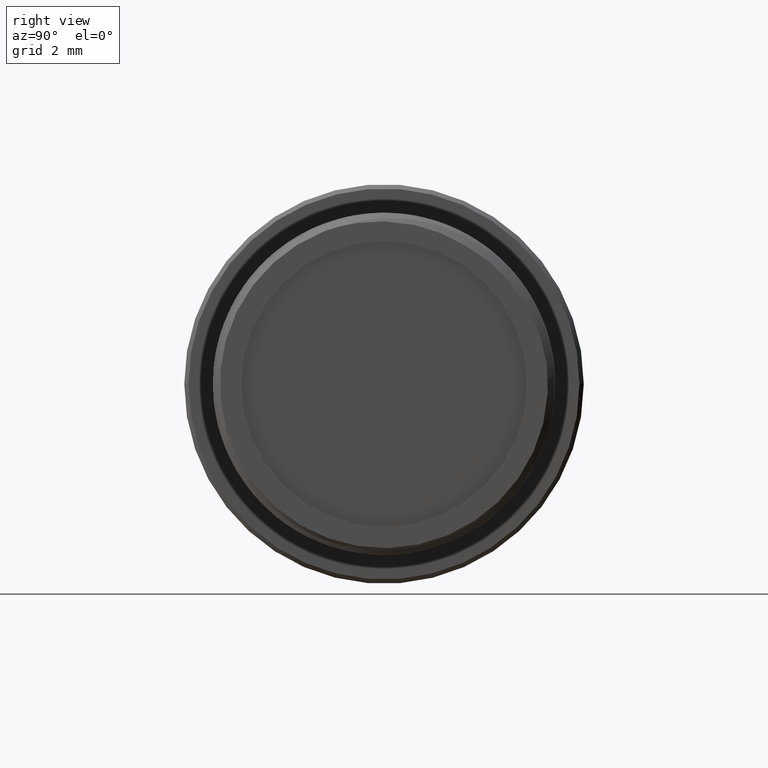
[diagram: clean part render]
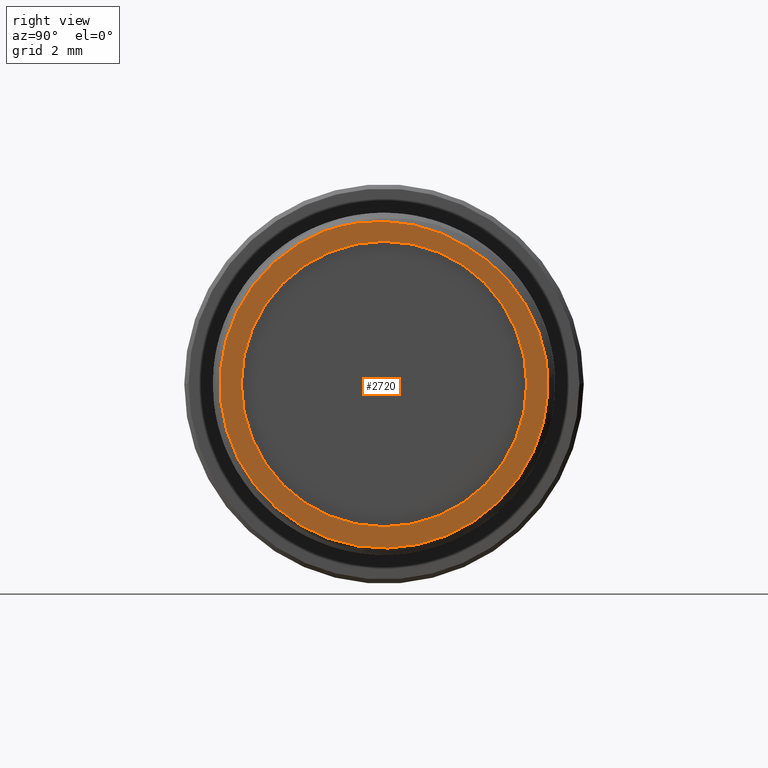
[diagram: same view with one face highlighted and labeled with its STEP entity id]
A machine part, right view. The second image highlights one B-rep face of the part: STEP entity #2720.
In plain terms, the highlighted planar face has unit normal (-1, 0, 0).
Its self-contained STEP definition (entity closure, byte-faithful):
#19=CARTESIAN_POINT('',(0.E0,0.E0,0.E0));
#20=DIRECTION('',(1.E0,0.E0,0.E0));
#21=DIRECTION('',(0.E0,1.E0,0.E0));
#22=AXIS2_PLACEMENT_3D('',#19,#20,#21);
#24=CARTESIAN_POINT('',(0.E0,0.E0,0.E0));
#25=DIRECTION('',(-1.E0,0.E0,0.E0));
#26=DIRECTION('',(0.E0,1.E0,0.E0));
#27=AXIS2_PLACEMENT_3D('',#24,#25,#26);
#29=CARTESIAN_POINT('',(0.E0,5.699190622905E0,7.627098031273E-1));
#30=CARTESIAN_POINT('',(0.E0,5.653276344861E0,1.052744048538E0));
#31=CARTESIAN_POINT('',(0.E0,5.519020116091E0,1.615833055948E0));
#32=CARTESIAN_POINT('',(0.E0,5.195672197276E0,2.416172728669E0));
#33=CARTESIAN_POINT('',(0.E0,4.757338927418E0,3.155941563535E0));
#34=CARTESIAN_POINT('',(0.E0,4.218660007966E0,3.815663821112E0));
#35=CARTESIAN_POINT('',(0.E0,3.587628175686E0,4.387312369419E0));
#36=CARTESIAN_POINT('',(0.E0,3.118725052726E0,4.698990401975E0));
#37=CARTESIAN_POINT('',(0.E0,2.870883567354E0,4.837968367368E0));
#39=CARTESIAN_POINT('',(0.E0,2.870883567354E0,4.837968367368E0));
#40=CARTESIAN_POINT('',(0.E0,2.629798658309E0,4.989134332419E0));
#41=CARTESIAN_POINT('',(0.E0,2.130441480215E0,5.251982320571E0));
#42=CARTESIAN_POINT('',(0.E0,1.321367402287E0,5.533121001027E0));
#43=CARTESIAN_POINT('',(0.E0,4.800968619272E-1,5.689021292631E0));
#44=CARTESIAN_POINT('',(0.E0,-3.783162457520E-1,5.717771415651E0));
#45=CARTESIAN_POINT('',(0.E0,-1.236927826403E0,5.616221313220E0));
#46=CARTESIAN_POINT('',(0.E0,-1.788868293271E0,5.465015836635E0));
#47=CARTESIAN_POINT('',(0.E0,-2.061286324058E0,5.367829979634E0));
#145=CARTESIAN_POINT('',(0.E0,0.E0,0.E0));
#146=DIRECTION('',(1.E0,0.E0,0.E0));
#147=DIRECTION('',(0.E0,-3.584845780970E-1,9.335356486319E-1));
#148=AXIS2_PLACEMENT_3D('',#145,#146,#147);
#2545=CARTESIAN_POINT('',(0.E0,5.E0,0.E0));
#2547=VERTEX_POINT('',#2545);
#2567=CARTESIAN_POINT('',(0.E0,-5.E0,0.E0));
#2569=VERTEX_POINT('',#2567);
#2590=VERTEX_POINT('',#29);
#2591=VERTEX_POINT('',#37);
#2592=VERTEX_POINT('',#47);
#2703=CARTESIAN_POINT('',(0.E0,0.E0,0.E0));
#2704=DIRECTION('',(-1.E0,0.E0,0.E0));
#2705=DIRECTION('',(0.E0,1.E0,0.E0));
#2706=AXIS2_PLACEMENT_3D('',#2703,#2704,#2705);
#2707=PLANE('',#2706);
#2709=ORIENTED_EDGE('',*,*,#2708,.F.);
#2711=ORIENTED_EDGE('',*,*,#2710,.F.);
#2713=ORIENTED_EDGE('',*,*,#2712,.F.);
#2714=EDGE_LOOP('',(#2709,#2711,#2713));
#2715=FACE_OUTER_BOUND('',#2714,.F.);
#2716=ORIENTED_EDGE('',*,*,#2685,.T.);
#2717=ORIENTED_EDGE('',*,*,#2696,.F.);
#2718=EDGE_LOOP('',(#2716,#2717));
#2719=FACE_BOUND('',#2718,.F.);
#2720=ADVANCED_FACE('',(#2715,#2719),#2707,.F.);
#23=CIRCLE('',#22,5.E0);
#28=CIRCLE('',#27,5.E0);
#38=B_SPLINE_CURVE_WITH_KNOTS('',3,(#29,#30,#31,#32,#33,#34,#35,#36,#37),
.UNSPECIFIED.,.F.,.F.,(4,1,1,1,1,1,4),(0.E0,1.666666666667E-1,3.333333333333E-1,
5.E-1,6.666666666667E-1,8.333333333333E-1,1.E0),.UNSPECIFIED.);
#48=B_SPLINE_CURVE_WITH_KNOTS('',3,(#39,#40,#41,#42,#43,#44,#45,#46,#47),
.UNSPECIFIED.,.F.,.F.,(4,1,1,1,1,1,4),(0.E0,1.666666666667E-1,3.333333333333E-1,
5.E-1,6.666666666667E-1,8.333333333333E-1,1.E0),.UNSPECIFIED.);
#149=CIRCLE('',#148,5.75E0);
#2685=EDGE_CURVE('',#2547,#2569,#23,.T.);
#2696=EDGE_CURVE('',#2547,#2569,#28,.T.);
#2708=EDGE_CURVE('',#2590,#2591,#38,.T.);
#2710=EDGE_CURVE('',#2592,#2590,#149,.T.);
#2712=EDGE_CURVE('',#2591,#2592,#48,.T.);